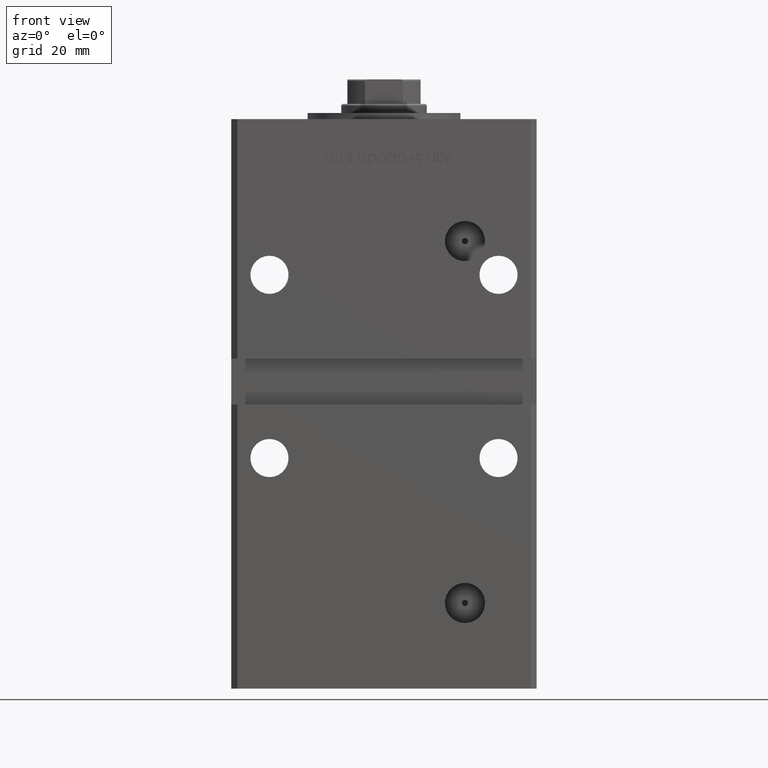
[diagram: clean part render]
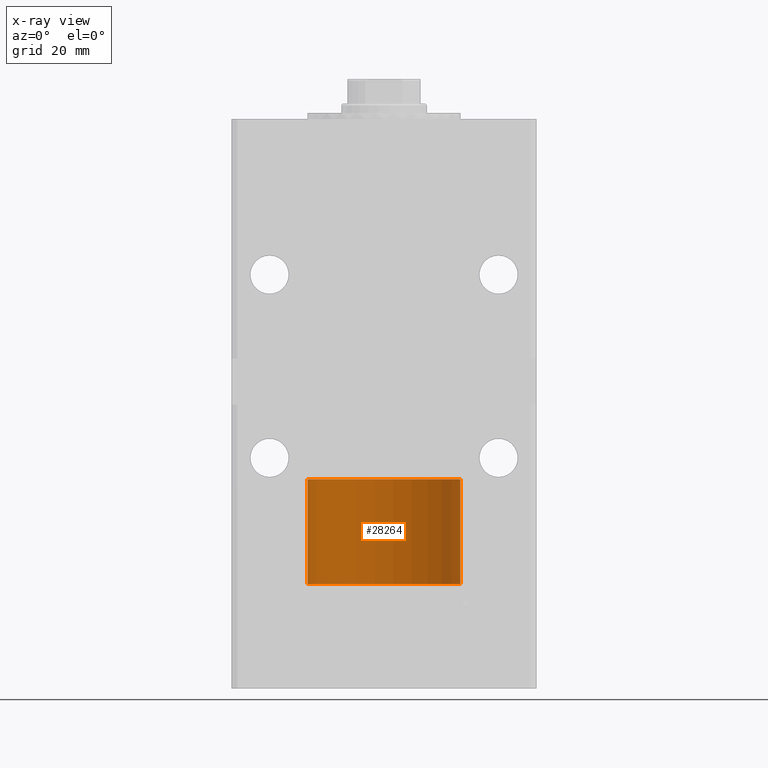
[diagram: x-ray — body ghosted, one internal face saturated and labeled with its STEP entity id]
A machine part, front view, then the same camera in x-ray: the body is ghosted and one INTERNAL B-rep face — a face not visible from any outside direction — is saturated and labeled: STEP entity #28264.
In plain terms, the highlighted cylindrical surface (partial cylindrical patch) has radius 25 mm, axis along (-0, -0, -1).
Its self-contained STEP definition (entity closure, byte-faithful):
#919 = EDGE_CURVE ( 'NONE', #31011, #38315, #26321, .T. ) ;
#4509 = DIRECTION ( 'NONE',  ( 1.000000000000000000, 0.000000000000000000, 0.000000000000000000 ) ) ;
#4955 = AXIS2_PLACEMENT_3D ( 'NONE', #41299, #29219, #4509 ) ;
#5944 = AXIS2_PLACEMENT_3D ( 'NONE', #26936, #10819, #14849 ) ;
#6802 = VERTEX_POINT ( 'NONE', #14020 ) ;
#6831 = CARTESIAN_POINT ( 'NONE',  ( 25.00000000000000000, 3.061616997868383043E-15, 34.25000000000000000 ) ) ;
#6842 = ORIENTED_EDGE ( 'NONE', *, *, #919, .T. ) ;
#7633 = VECTOR ( 'NONE', #27618, 1000.000000000000000 ) ;
#7774 = FACE_OUTER_BOUND ( 'NONE', #48580, .T. ) ;
#10819 = DIRECTION ( 'NONE',  ( -0.000000000000000000, -0.000000000000000000, -1.000000000000000000 ) ) ;
#14020 = CARTESIAN_POINT ( 'NONE',  ( -25.00000000000000000, 0.000000000000000000, 34.25000000000000000 ) ) ;
#14310 = CYLINDRICAL_SURFACE ( 'NONE', #5944, 25.00000000000000000 ) ;
#14849 = DIRECTION ( 'NONE',  ( -1.000000000000000000, 0.000000000000000000, 0.000000000000000000 ) ) ;
#16315 = LINE ( 'NONE', #40485, #7633 ) ;
#17480 = ORIENTED_EDGE ( 'NONE', *, *, #26421, .F. ) ;
#21301 = DIRECTION ( 'NONE',  ( 1.000000000000000000, 0.000000000000000000, 0.000000000000000000 ) ) ;
#22779 = EDGE_CURVE ( 'NONE', #31011, #6802, #27233, .T. ) ;
#26321 = LINE ( 'NONE', #34647, #46445 ) ;
#26421 = EDGE_CURVE ( 'NONE', #6802, #47652, #16315, .T. ) ;
#26936 = CARTESIAN_POINT ( 'NONE',  ( 0.000000000000000000, 0.000000000000000000, 34.25000000000000000 ) ) ;
#27233 = CIRCLE ( 'NONE', #4955, 25.00000000000000000 ) ;
#27618 = DIRECTION ( 'NONE',  ( -0.000000000000000000, -0.000000000000000000, -1.000000000000000000 ) ) ;
#28264 = ADVANCED_FACE ( 'NONE', ( #7774 ), #14310, .T. ) ;
#29219 = DIRECTION ( 'NONE',  ( 0.000000000000000000, 0.000000000000000000, 1.000000000000000000 ) ) ;
#29632 = DIRECTION ( 'NONE',  ( 0.000000000000000000, 0.000000000000000000, 1.000000000000000000 ) ) ;
#31011 = VERTEX_POINT ( 'NONE', #6831 ) ;
#31267 = ORIENTED_EDGE ( 'NONE', *, *, #44993, .T. ) ;
#34647 = CARTESIAN_POINT ( 'NONE',  ( 25.00000000000000000, 3.061616997868383043E-15, 34.25000000000000000 ) ) ;
#35816 = AXIS2_PLACEMENT_3D ( 'NONE', #41708, #29632, #21301 ) ;
#38315 = VERTEX_POINT ( 'NONE', #41872 ) ;
#39200 = DIRECTION ( 'NONE',  ( -0.000000000000000000, -0.000000000000000000, -1.000000000000000000 ) ) ;
#40478 = ORIENTED_EDGE ( 'NONE', *, *, #22779, .F. ) ;
#40485 = CARTESIAN_POINT ( 'NONE',  ( -25.00000000000000000, 0.000000000000000000, 34.25000000000000000 ) ) ;
#41299 = CARTESIAN_POINT ( 'NONE',  ( 0.000000000000000000, 0.000000000000000000, 34.25000000000000000 ) ) ;
#41708 = CARTESIAN_POINT ( 'NONE',  ( 0.000000000000000000, 0.000000000000000000, 0.000000000000000000 ) ) ;
#41872 = CARTESIAN_POINT ( 'NONE',  ( 25.00000000000000000, 3.061616997868383043E-15, 0.000000000000000000 ) ) ;
#43524 = CIRCLE ( 'NONE', #35816, 25.00000000000000000 ) ;
#44251 = CARTESIAN_POINT ( 'NONE',  ( -25.00000000000000000, 0.000000000000000000, 0.000000000000000000 ) ) ;
#44993 = EDGE_CURVE ( 'NONE', #38315, #47652, #43524, .T. ) ;
#46445 = VECTOR ( 'NONE', #39200, 1000.000000000000000 ) ;
#47652 = VERTEX_POINT ( 'NONE', #44251 ) ;
#48580 = EDGE_LOOP ( 'NONE', ( #40478, #6842, #31267, #17480 ) ) ;